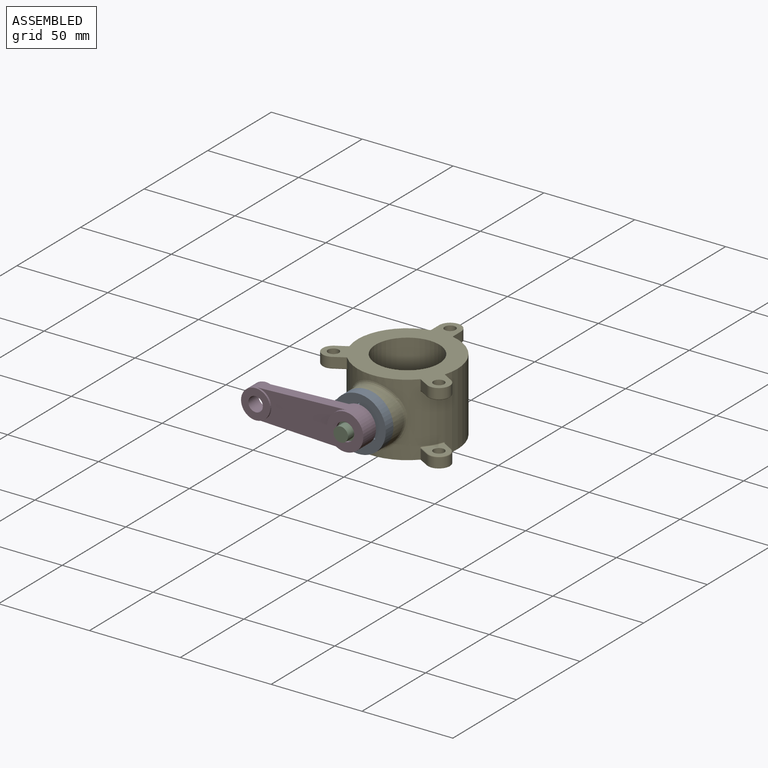
[diagram: assembled view]
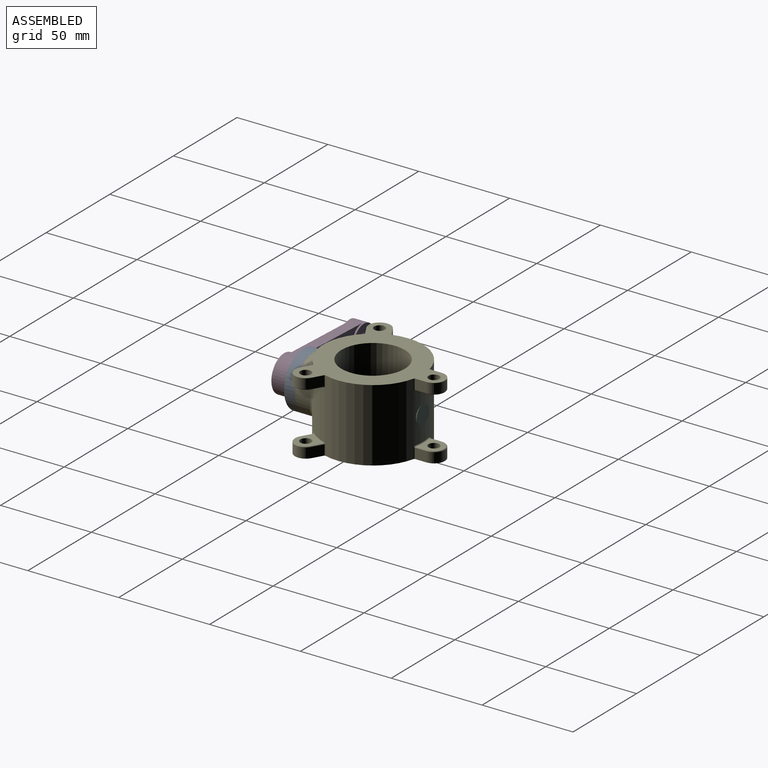
[diagram: assembled view, second angle]
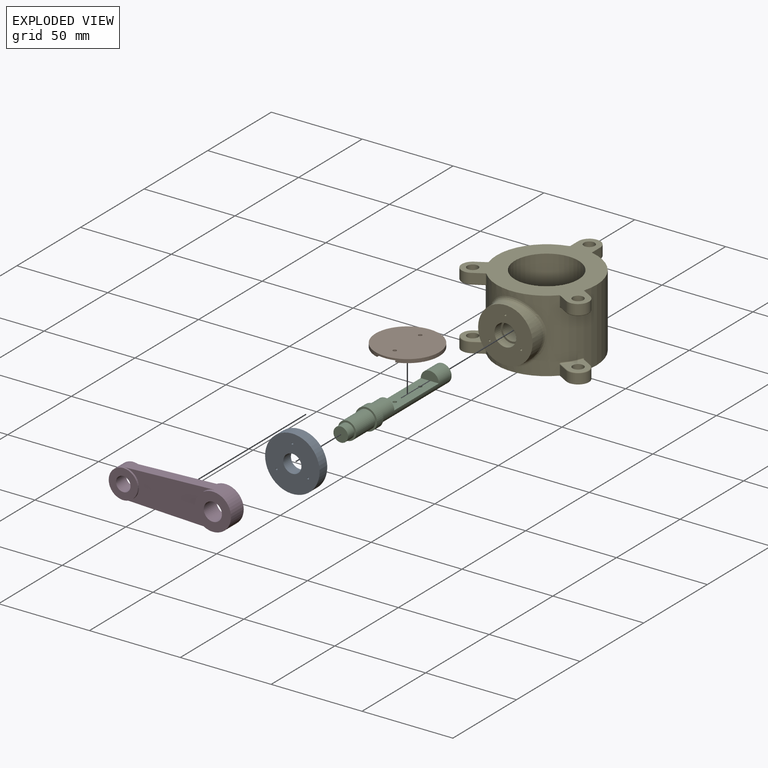
[diagram: exploded view]
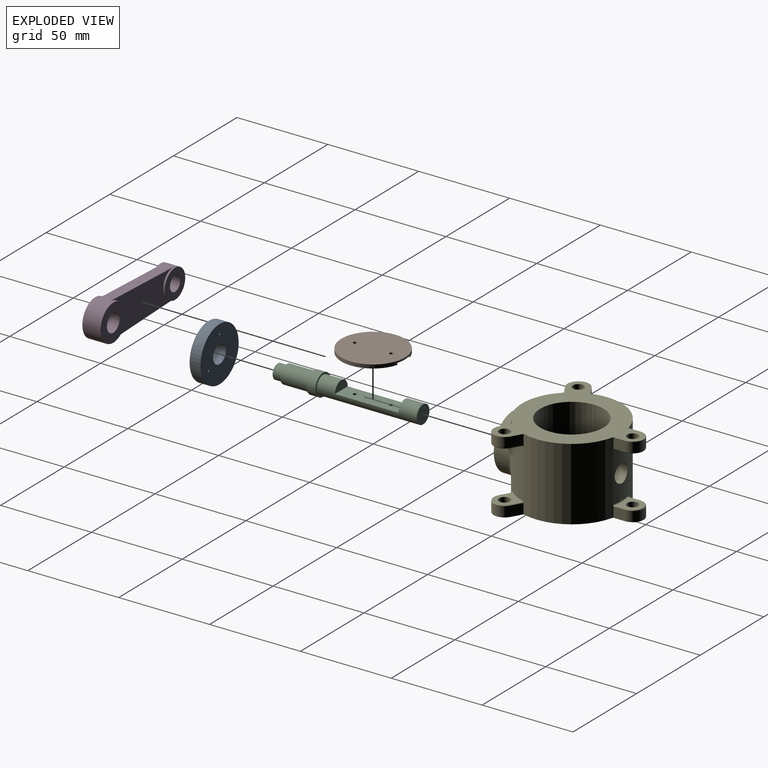
[diagram: exploded view, second angle]
ASSEMBLY  parts=5 mates=4
PART A: 7 faces, bbox 30x30x6 mm
  f0: cylinder r=5mm len=10mm, axis (0,0,-1), area 188.5mm2, adj f5,f6
  f1: cylinder r=0.5mm len=6mm, axis (0,0,-1), area 18.8mm2, adj f5,f6
  f2: cylinder r=0.5mm len=6mm, axis (0,0,-1), area 18.8mm2, adj f5,f6
  f3: cylinder r=0.5mm len=6mm, axis (0,0,-1), area 18.8mm2, adj f5,f6
  f4: cylinder r=15mm len=30mm, axis (0,0,-1), area 565.5mm2, adj f5,f6
  f5: plane 30x30mm, normal (0,0,1), area 626mm2, adj f0,f1,f2,f3,f4
  f6: plane 30x30mm, normal (0,0,-1), area 626mm2, adj f0,f1,f2,f3,f4
PART B: 9 faces, bbox 35x35x2 mm
  f0: cylinder r=17.5mm len=35mm, axis (0,0,-1), area 199.6mm2, adj f1,f2,f3,f4,f5,f8
  f1: plane 33.54x1mm, normal (1,0,0), area 33.5mm2, adj f0,f2,f8
  f2: plane 33.54x12.5mm, normal (0,0,1), area 308.5mm2, adj f0,f1
  f3: plane 35x35mm, normal (0,0,-1), area 955.8mm2, adj f0,f6,f7
  f4: plane 33.54x1mm, normal (-1,0,0), area 33.5mm2, adj f0,f5,f8
  f5: plane 33.54x12.5mm, normal (0,0,1), area 308.5mm2, adj f0,f4
  f6: cylinder r=1mm len=2mm, axis (0,0,-1), area 6.3mm2, adj f3,f8
  f7: cylinder r=1mm len=2mm, axis (0,0,-1), area 6.3mm2, adj f3,f8
  f8: plane 35x10mm, normal (0,0,1), area 338.9mm2, adj f0,f1,f4,f6,f7
PART C: 16 faces, bbox 80x12x12 mm
  f0: cylinder r=5mm len=55mm, axis (-1,0,0), area 1178.1mm2, adj f1,f8,f9,f10,f11
  f1: plane 10x10mm, normal (-1,0,0), area 78.5mm2, adj f0
  f2: plane 8x8mm, normal (1,0,0), area 50.3mm2, adj f3
  f3: cylinder r=4mm len=8mm, axis (-1,0,0), area 125.7mm2, adj f2,f4
  f4: plane 10x10mm, normal (1,0,0), area 28.3mm2, adj f3,f5
  f5: cylinder r=5mm len=15mm, axis (-1,0,0), area 471.2mm2, adj f4,f6
  f6: plane 12x12mm, normal (1,0,0), area 34.6mm2, adj f5,f7
  f7: cylinder r=6mm len=12mm, axis (-1,0,0), area 188.5mm2, adj f6,f8
  f8: plane 12x12mm, normal (-1,0,0), area 34.6mm2, adj f0,f7
  f9: plane 10x5mm, normal (1,0,0), area 39.3mm2, adj f0,f11
  f10: plane 10x5mm, normal (-1,0,0), area 39.3mm2, adj f0,f11
  f11: plane 35x10mm, normal (0,0,1), area 343.7mm2, adj f0,f9,f10,f13,f15
  f12: cone r=0mm half-angle=59deg, axis (0,0,1), area 3.7mm2, adj f13
  f13: cylinder r=1mm len=3mm, axis (0,0,1), area 18.8mm2, adj f11,f12
  f14: cone r=0mm half-angle=59deg, axis (0,0,1), area 3.7mm2, adj f15
  f15: cylinder r=1mm len=3mm, axis (0,0,1), area 18.8mm2, adj f11,f14
PART D: 12 faces, bbox 68x20x10 mm
  f0: plane 49.92x6mm, normal (0.04,-1,0), area 299.8mm2, adj f2,f3,f5,f9
  f1: plane 49.92x6mm, normal (0.04,1,0), area 299.8mm2, adj f2,f3,f5,f9
  f2: plane 49.92x19.98mm, normal (0,0,1), area 643.1mm2, adj f0,f1,f5,f9
  f3: plane 49.92x19.98mm, normal (0,0,-1), area 643.1mm2, adj f0,f1,f5,f9
  f4: cylinder r=5mm len=10mm, axis (0,0,-1), area 314.2mm2, adj f6,f7
  f5: cylinder r=10mm len=20mm, axis (0,0,-1), area 444.6mm2, adj f0,f1,f2,f3,f6,f7
  f6: plane 20x20mm, normal (0,0,1), area 235.6mm2, adj f4,f5
  f7: plane 20x20mm, normal (0,0,-1), area 235.6mm2, adj f4,f5
  f8: cylinder r=4mm len=8mm, axis (0,0,-1), area 201.1mm2, adj f10,f11
  f9: cylinder r=8mm len=16mm, axis (0,0,-1), area 247.5mm2, adj f0,f1,f2,f3,f10,f11
  f10: plane 16x16mm, normal (0,0,1), area 150.8mm2, adj f8,f9
  f11: plane 16x16mm, normal (0,0,-1), area 150.8mm2, adj f8,f9
PART E: 95 faces, bbox 71x40x72.5 mm
  f0: cylinder r=27.5mm len=55mm, axis (0,1,0), area 5446.3mm2, adj f3,f4,f7,f46,f48,f50,f52,f53
  f1: cylinder r=5mm len=10.73mm, axis (0,0,1), area 325.6mm2, adj f2,f9
  f2: cylinder r=17.5mm len=40mm, axis (0,1,0), area 4239.5mm2, adj f1,f3,f4,f7
  f3: plane 70.02x67mm, normal (0,-1,0), area 1722.6mm2, adj f0,f2,f10,f11,f12,f13,f15,f16
  f4: plane 70.02x67mm, normal (0,1,0), area 1722.6mm2, adj f0,f2,f25,f26,f27,f28,f30,f31
  f5: cylinder r=15mm len=30mm, axis (0,0,1), area 530.4mm2, adj f6,f46
  f6: plane 30x30mm, normal (0,0,1), area 591.4mm2, adj f5,f8,f40,f42,f44
  f7: cylinder r=5mm len=10.73mm, axis (0,0,1), area 318.4mm2, adj f0,f2
  f8: cylinder r=6mm len=12mm, axis (0,0,1), area 188.5mm2, adj f6,f9
  f9: plane 12x12mm, normal (0,0,1), area 34.6mm2, adj f1,f8
  f10: plane 5.5x5.43mm, normal (-0.5,0,0.87), area 34.5mm2, adj f3,f12,f87,f88
  f11: plane 5.5x5.43mm, normal (0.5,0,-0.87), area 34.5mm2, adj f3,f12,f91,f94
  f12: cylinder r=6mm len=11.2mm, axis (0,-1,0), area 103.7mm2, adj f3,f10,f11,f89
  f13: cylinder r=3mm len=6mm, axis (0,-1,0), area 113.1mm2, adj f3,f14
  f14: plane 13.49x13.29mm, normal (0,1,0), area 81.7mm2, adj f13,f87,f89,f91,f92
  f15: plane 5.5x5.43mm, normal (0.5,0,0.87), area 34.5mm2, adj f3,f16,f82,f86
  f16: cylinder r=6mm len=11.2mm, axis (0,-1,0), area 103.7mm2, adj f3,f15,f18,f85
  f17: cylinder r=3mm len=6mm, axis (0,-1,0), area 113.1mm2, adj f3,f19
  f18: plane 5.5x5.43mm, normal (-0.5,0,-0.87), area 34.5mm2, adj f3,f16,f79,f83
  f19: plane 13.49x13.29mm, normal (0,1,0), area 81.7mm2, adj f17,f81,f83,f85,f86
  f20: plane 6.27x5.5mm, normal (-1,0,0), area 34.5mm2, adj f3,f21,f71,f72
  f21: cylinder r=6mm len=12mm, axis (0,-1,0), area 103.7mm2, adj f3,f20,f23,f74
  f22: cylinder r=3mm len=6mm, axis (0,-1,0), area 113.1mm2, adj f3,f24
  f23: plane 6.27x5.5mm, normal (1,0,0), area 34.5mm2, adj f3,f21,f76,f78
  f24: plane 11.55x11mm, normal (0,1,0), area 81.7mm2, adj f22,f72,f74,f75,f76
  f25: plane 5.5x5.43mm, normal (-0.5,0,0.87), area 34.5mm2, adj f4,f27,f63,f64
  f26: plane 5.5x5.43mm, normal (0.5,0,-0.87), area 34.5mm2, adj f4,f27,f68,f70
  f27: cylinder r=6mm len=11.2mm, axis (0,1,0), area 103.7mm2, adj f4,f25,f26,f66
  f28: cylinder r=3mm len=6mm, axis (0,1,0), area 113.1mm2, adj f4,f29
  f29: plane 13.49x13.29mm, normal (0,-1,0), area 81.7mm2, adj f28,f64,f66,f67,f68
  f30: plane 5.5x5.43mm, normal (0.5,0,0.87), area 34.5mm2, adj f4,f31,f60,f62
  f31: cylinder r=6mm len=11.2mm, axis (0,1,0), area 103.7mm2, adj f4,f30,f33,f58
  f32: cylinder r=3mm len=6mm, axis (0,1,0), area 113.1mm2, adj f4,f34
  f33: plane 5.5x5.43mm, normal (-0.5,0,-0.87), area 34.5mm2, adj f4,f31,f55,f56
  f34: plane 13.49x13.29mm, normal (0,-1,0), area 81.7mm2, adj f32,f56,f58,f59,f60
  f35: plane 6.27x5.5mm, normal (-1,0,0), area 34.5mm2, adj f4,f36,f47,f48
  f36: cylinder r=6mm len=12mm, axis (0,1,0), area 103.7mm2, adj f4,f35,f38,f49
  f37: cylinder r=3mm len=6mm, axis (0,1,0), area 113.1mm2, adj f4,f39
  f38: plane 6.27x5.5mm, normal (1,0,0), area 34.5mm2, adj f4,f36,f51,f54
  f39: plane 11.55x11mm, normal (0,-1,0), area 81.7mm2, adj f37,f47,f49,f51,f52
  f40: cylinder r=0.5mm len=5mm, axis (0,0,1), area 15.7mm2, adj f6,f41
  f41: plane 1x1mm, normal (0,0,1), area 0.8mm2, adj f40
  f42: cylinder r=0.5mm len=5mm, axis (0,0,1), area 15.7mm2, adj f6,f43
  f43: plane 1x1mm, normal (0,0,1), area 0.8mm2, adj f42
  f44: cylinder r=0.5mm len=5mm, axis (0,0,1), area 15.7mm2, adj f6,f45
  f45: plane 1x1mm, normal (0,0,1), area 0.8mm2, adj f44
  f46: bspline ~34.01x31.71mm, area 253.1mm2, adj f0,f5
  f47: cylinder r=0.5mm len=6.27mm, axis (0,0,1), area 4.8mm2, adj f35,f39,f49,f50
  f48: cylinder r=0.5mm len=5.5mm, axis (0,1,0), area 3.7mm2, adj f0,f4,f35,f50
  f49: torus R=5.5mm, axis (0,-1,0), area 14.4mm2, adj f36,f39,f47,f51
  f50: bspline ~1.22x1.14mm, area 0.8mm2, adj f0,f47,f48,f52
  f51: cylinder r=0.5mm len=6.27mm, axis (0,0,-1), area 4.8mm2, adj f38,f39,f49,f53
  f52: torus R=28mm, axis (0,-1,0), area 8.6mm2, adj f0,f39,f50,f53
  f53: bspline ~1.21x1.19mm, area 0.8mm2, adj f0,f51,f52,f54
  f54: cylinder r=0.5mm len=5.5mm, axis (0,1,0), area 3.7mm2, adj f0,f4,f38,f53
  f55: cylinder r=0.5mm len=5.5mm, axis (0,1,0), area 3.7mm2, adj f0,f4,f33,f57
  f56: cylinder r=0.5mm len=5.68mm, axis (-0.87,0,0.5), area 4.8mm2, adj f33,f34,f57,f58
  f57: bspline ~1.24x1.19mm, area 0.8mm2, adj f0,f55,f56,f59
  f58: torus R=5.5mm, axis (0,-1,0), area 14.4mm2, adj f31,f34,f56,f60
  f59: torus R=28mm, axis (0,-1,0), area 8.6mm2, adj f0,f34,f57,f61
  f60: cylinder r=0.5mm len=5.68mm, axis (0.87,0,-0.5), area 4.8mm2, adj f30,f34,f58,f61
  f61: bspline ~1.22x1.12mm, area 0.8mm2, adj f0,f59,f60,f62
  f62: cylinder r=0.5mm len=5.5mm, axis (0,1,0), area 3.7mm2, adj f0,f4,f30,f61
  f63: cylinder r=0.5mm len=5.5mm, axis (0,1,0), area 3.7mm2, adj f0,f4,f25,f65
  f64: cylinder r=0.5mm len=5.68mm, axis (0.87,0,0.5), area 4.8mm2, adj f25,f29,f65,f66
  f65: bspline ~1.19x1.15mm, area 0.8mm2, adj f0,f63,f64,f67
  f66: torus R=5.5mm, axis (0,-1,0), area 14.4mm2, adj f27,f29,f64,f68
  f67: torus R=28mm, axis (0,-1,0), area 8.6mm2, adj f0,f29,f65,f69
  f68: cylinder r=0.5mm len=5.68mm, axis (-0.87,0,-0.5), area 4.8mm2, adj f26,f29,f66,f69
  f69: bspline ~1.22x1.2mm, area 0.8mm2, adj f0,f67,f68,f70
  f70: cylinder r=0.5mm len=5.5mm, axis (0,1,0), area 3.7mm2, adj f0,f4,f26,f69
  f71: cylinder r=0.5mm len=5.5mm, axis (0,1,0), area 3.7mm2, adj f0,f3,f20,f73
  f72: cylinder r=0.5mm len=6.27mm, axis (0,0,1), area 4.8mm2, adj f20,f24,f73,f74
  f73: bspline ~1.21x1.19mm, area 0.8mm2, adj f0,f71,f72,f75
  f74: torus R=5.5mm, axis (0,-1,0), area 14.4mm2, adj f21,f24,f72,f76
  f75: torus R=28mm, axis (0,-1,0), area 8.6mm2, adj f0,f24,f73,f77
  f76: cylinder r=0.5mm len=6.27mm, axis (0,0,-1), area 4.8mm2, adj f23,f24,f74,f77
  f77: bspline ~1.22x1.14mm, area 0.8mm2, adj f0,f75,f76,f78
  f78: cylinder r=0.5mm len=5.5mm, axis (0,1,0), area 3.7mm2, adj f0,f3,f23,f77
  f79: cylinder r=0.5mm len=5.5mm, axis (0,1,0), area 3.7mm2, adj f0,f3,f18,f80
  f80: bspline ~1.22x1.2mm, area 0.8mm2, adj f0,f79,f81,f83
  f81: torus R=28mm, axis (0,-1,0), area 8.6mm2, adj f0,f19,f80,f84
  f82: cylinder r=0.5mm len=5.5mm, axis (0,1,0), area 3.7mm2, adj f0,f3,f15,f84
  f83: cylinder r=0.5mm len=5.68mm, axis (-0.87,0,0.5), area 4.8mm2, adj f18,f19,f80,f85
  f84: bspline ~1.19x1.15mm, area 0.8mm2, adj f0,f81,f82,f86
  f85: torus R=5.5mm, axis (0,-1,0), area 14.4mm2, adj f16,f19,f83,f86
  f86: cylinder r=0.5mm len=5.68mm, axis (0.87,0,-0.5), area 4.8mm2, adj f15,f19,f84,f85
  f87: cylinder r=0.5mm len=5.68mm, axis (0.87,0,0.5), area 4.8mm2, adj f10,f14,f89,f90
  f88: cylinder r=0.5mm len=5.5mm, axis (0,1,0), area 3.7mm2, adj f0,f3,f10,f90
  f89: torus R=5.5mm, axis (0,-1,0), area 14.4mm2, adj f12,f14,f87,f91
  f90: bspline ~1.22x1.12mm, area 0.8mm2, adj f0,f87,f88,f92
  f91: cylinder r=0.5mm len=5.68mm, axis (-0.87,0,-0.5), area 4.8mm2, adj f11,f14,f89,f93
  f92: torus R=28mm, axis (0,-1,0), area 8.6mm2, adj f0,f14,f90,f93
  f93: bspline ~1.24x1.19mm, area 0.8mm2, adj f0,f91,f92,f94
  f94: cylinder r=0.5mm len=5.5mm, axis (0,1,0), area 3.7mm2, adj f0,f3,f11,f93
PLACE A rot(axis=(0,0.71,0.71),180deg) t=(0,-35.5,0)mm
PLACE B rot(axis=(0,-1,0),180deg) t=(0,0,1)mm
PLACE C rot(axis=(0,0,-1),90deg) t=(0,-12.7,0)mm
PLACE D rot(axis=(0,-0.71,-0.71),180deg) t=(-31.24,-44,0)mm
PLACE E rot(axis=(1,0,0),90deg) t=(0,0,0)mm
MATE fastened D.f4 <-> C.f0  axis (0,1,0) through (0,-39,0)mm
MATE revolute C.f0 <-> E.f8  axis (0,1,0) through (0,-27.5,0)mm
MATE fastened A.f4 <-> E.f5  axis (0,1,0) through (0,-32.5,0)mm
MATE fastened B.f0 <-> C.f11  axis (0,0,-1) through (0,0,0)mm
